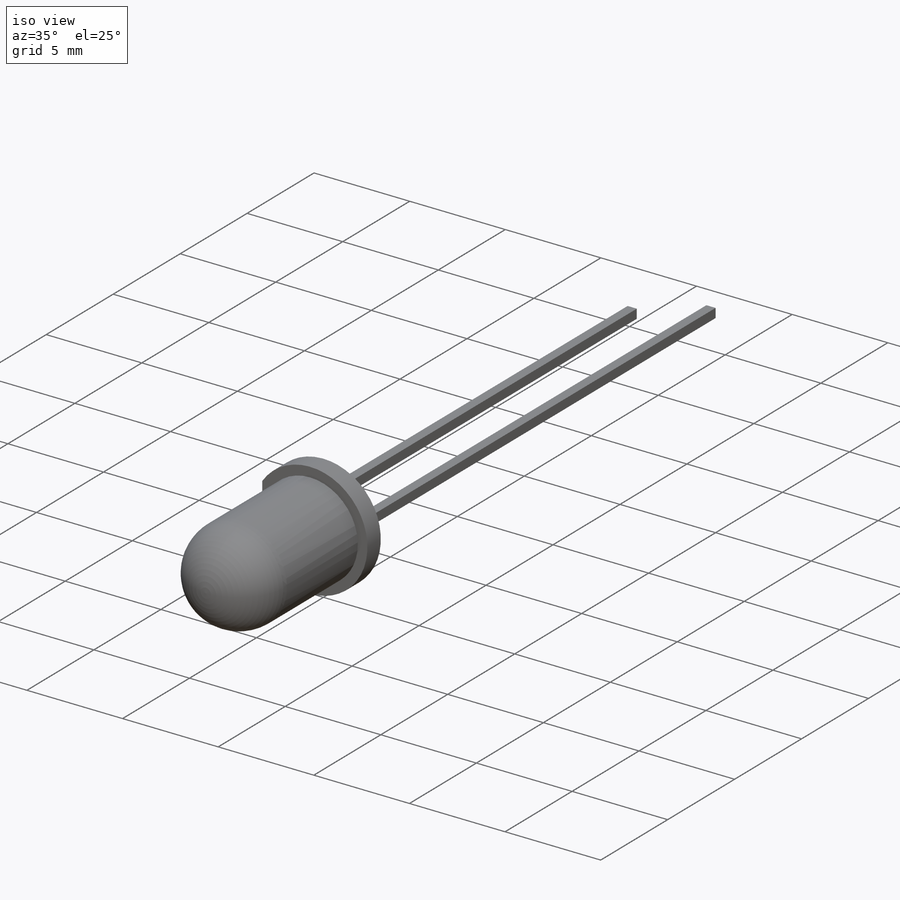
[diagram: iso view]
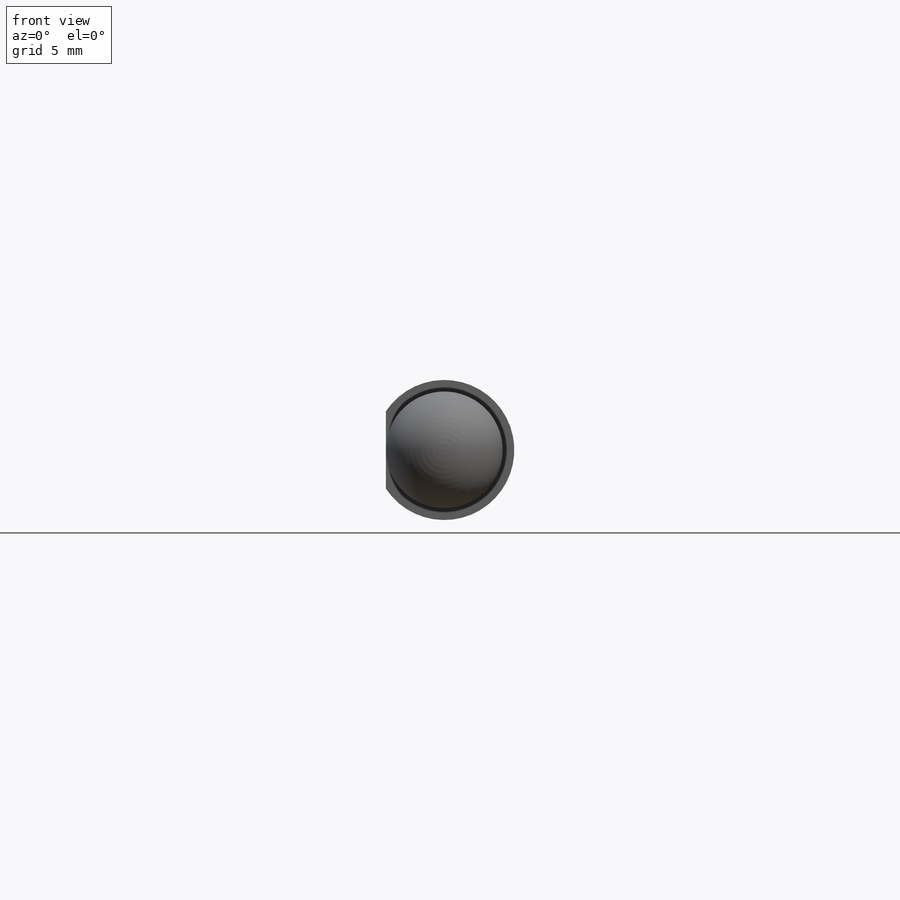
[diagram: front view]
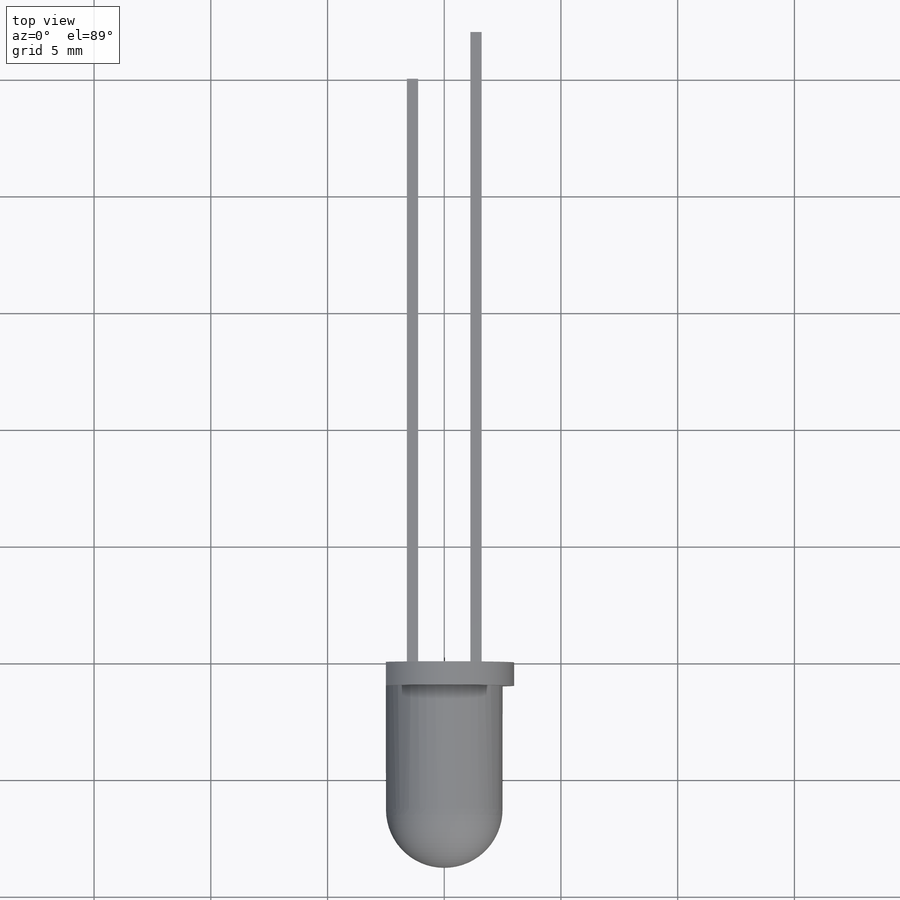
[diagram: top view]
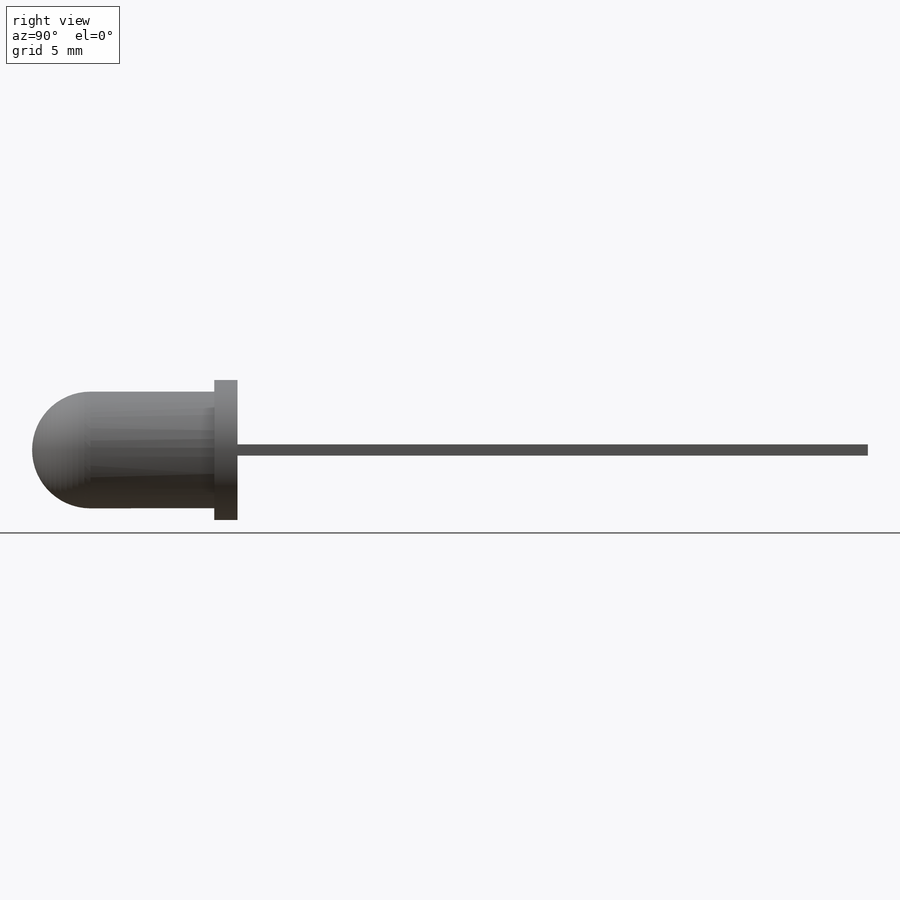
[diagram: right view]
SOLIDWORKS PART (.sldprt)
format: sldprt  version: not decoded by parser v0  size: 340,992 bytes
history: native  units: mm
features: sketch x11, plane x4, extrude x4, cut_extrude x3, boolean_combine x3, revolve x2, material x1, cut_revolve x1 (+9 scaffold rows collapsed)
feature tree (38):
  scaffold x9  (default folders/planes/origin — collapsed)
  material  "Material <não especificado>"
  plane  "Plano frontal"
  plane  "Plano superior"
  plane  "Plano direito"
  sketch  "Esboço1"  dims[D1=6.0mm]
  extrude  "Ressalto-extrusão1"  Depth=1mm
  sketch  "Esboço3"  dims[D1=2.5mm D2=7.8mm]
  revolve  "Revolução1"  Angle=360deg
  sketch  "Esboço4"  dims[D1=3.0mm]
  cut_extrude  "Corte-extrusão1"  [1 undecoded]
  sketch  "Esboço5"  dims[D1=3.2mm D2=0.48mm]
  extrude  "Ressalto-extrusão2"  Depth=25mm
  sketch  "Esboço6"  dims[D1=0.0mm]
  extrude  "Ressalto-extrusão3"  Depth=2mm
  sketch  "Esboço7"  dims[D1=4.0mm D2=2.0mm D3=2.8mm D4=0.2mm D5=0.9mm D6=3.5mm D7=2.5mm]
  cut_extrude  "Corte-extrusão2"  Depth=0.48mm
  sketch  "Esboço8"
  extrude  "Ressalto-extrusão4"  Depth=0.48mm
  boolean_combine  "Combinar1"
  boolean_combine  "Combinar2"
  sketch  "Esboço10"  dims[D1=0.5mm D2=0.3mm]
  cut_revolve  "Corte-Revolução1"  Angle=360deg
  sketch  "Esboço11"
  revolve  "Revolução2"  Angle=360deg
  boolean_combine  "Combinar3"
  sketch  "Esboço12"  dims[D1=0.4mm]
  cut_extrude  "Corte-extrusão3"  Depth=0.1mm
  sketch  "Esboço13"  dims[c1.D1=10.0mm c1.D2=0.48mm c2.D2=30.0deg]
  plane  "Plano1"
decode coverage: 18 of 24 modeling features carry decoded parameters
note: 1 parameter value undecoded
note: suppression state not decoded; provenance and decode notes live in map.json
